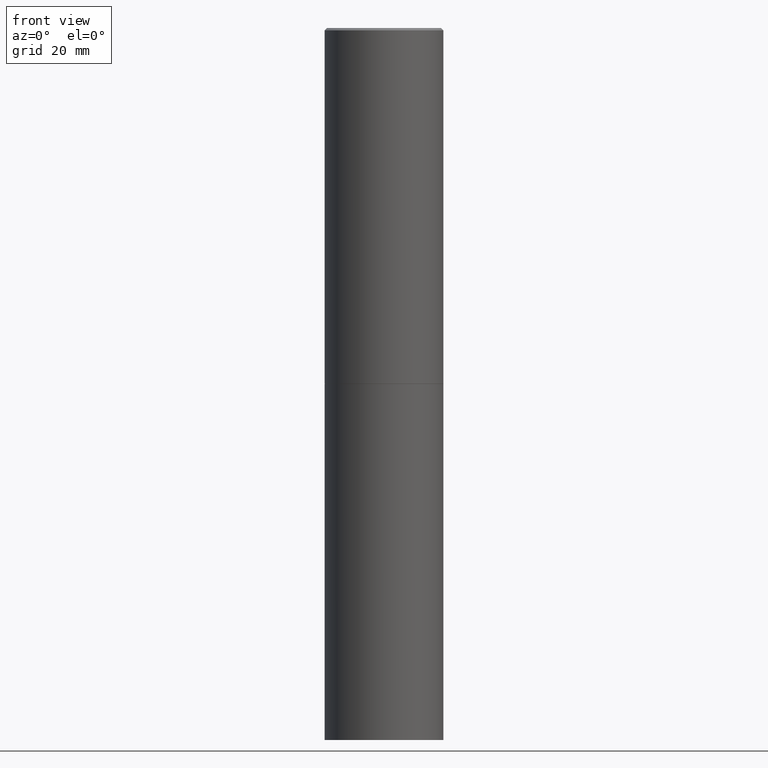
[diagram: clean part render]
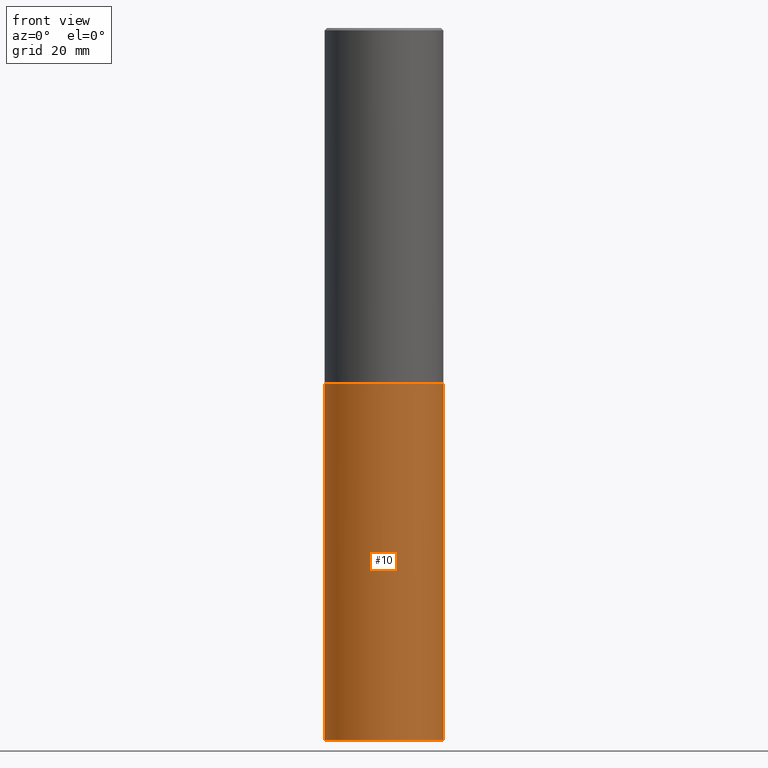
[diagram: same view with one face highlighted and labeled with its STEP entity id]
A machine part, front view. The second image highlights one B-rep face of the part: STEP entity #10.
In plain terms, the highlighted cylindrical surface (partial cylindrical patch) has radius 12.7 mm, axis along (-0, 0, 1).
Its self-contained STEP definition (entity closure, byte-faithful):
#7 = CARTESIAN_POINT ( 'NONE',  ( 7.336406418555409790E-29, -1.047444401652943635E-14, -3.000000000000000444 ) ) ;
#10 = ADVANCED_FACE ( 'NONE', ( #124 ), #153, .T. ) ;
#12 = DIRECTION ( 'NONE',  ( -2.445468806185136877E-29, 3.491481338843145188E-15, 1.000000000000000000 ) ) ;
#15 = AXIS2_PLACEMENT_3D ( 'NONE', #7, #238, #36 ) ;
#29 = CARTESIAN_POINT ( 'NONE',  ( -0.5000000000000000000, -1.215895234599365439E-14, -6.000000000000000888 ) ) ;
#30 = DIRECTION ( 'NONE',  ( -2.445468806185136597E-29, 3.491481338843145583E-15, 1.000000000000000000 ) ) ;
#31 = DIRECTION ( 'NONE',  ( 1.000000000000000000, -6.982962677686262766E-15, 0.000000000000000000 ) ) ;
#36 = DIRECTION ( 'NONE',  ( 1.000000000000000000, -6.982962677686266711E-15, 0.000000000000000000 ) ) ;
#39 = EDGE_CURVE ( 'NONE', #52, #143, #84, .T. ) ;
#49 = VECTOR ( 'NONE', #177, 39.37007874015748143 ) ;
#52 = VERTEX_POINT ( 'NONE', #29 ) ;
#67 = CARTESIAN_POINT ( 'NONE',  ( 0.5000000000000000000, -3.491481338843133355E-15, 2.438088387897967896E-29 ) ) ;
#73 = EDGE_CURVE ( 'NONE', #52, #199, #241, .T. ) ;
#82 = AXIS2_PLACEMENT_3D ( 'NONE', #87, #30, #31 ) ;
#84 = LINE ( 'NONE', #180, #49 ) ;
#87 = CARTESIAN_POINT ( 'NONE',  ( 1.467281283711081958E-28, -2.094888803305887271E-14, -6.000000000000000888 ) ) ;
#98 = CARTESIAN_POINT ( 'NONE',  ( -0.5000000000000000000, -1.215895234599365439E-14, -3.000000000000000444 ) ) ;
#99 = VECTOR ( 'NONE', #12, 39.37007874015748143 ) ;
#124 = FACE_OUTER_BOUND ( 'NONE', #302, .T. ) ;
#128 = EDGE_CURVE ( 'NONE', #199, #325, #320, .T. ) ;
#141 = ORIENTED_EDGE ( 'NONE', *, *, #285, .F. ) ;
#143 = VERTEX_POINT ( 'NONE', #98 ) ;
#145 = DIRECTION ( 'NONE',  ( -2.445468806185136597E-29, 3.491481338843145583E-15, 1.000000000000000000 ) ) ;
#153 = CYLINDRICAL_SURFACE ( 'NONE', #349, 0.5000000000000000000 ) ;
#157 = CARTESIAN_POINT ( 'NONE',  ( 0.5000000000000000000, -2.444036937190200606E-14, -6.000000000000000888 ) ) ;
#165 = CIRCLE ( 'NONE', #15, 0.5000000000000000000 ) ;
#177 = DIRECTION ( 'NONE',  ( -2.445468806185136877E-29, 3.491481338843145188E-15, 1.000000000000000000 ) ) ;
#180 = CARTESIAN_POINT ( 'NONE',  ( -0.5000000000000000000, 3.552713678800500929E-15, -2.459467545127452891E-29 ) ) ;
#199 = VERTEX_POINT ( 'NONE', #157 ) ;
#205 = CARTESIAN_POINT ( 'NONE',  ( 0.000000000000000000, 0.000000000000000000, 0.000000000000000000 ) ) ;
#222 = ORIENTED_EDGE ( 'NONE', *, *, #128, .T. ) ;
#238 = DIRECTION ( 'NONE',  ( -2.445468806185136597E-29, 3.491481338843145583E-15, 1.000000000000000000 ) ) ;
#241 = CIRCLE ( 'NONE', #82, 0.5000000000000000000 ) ;
#250 = ORIENTED_EDGE ( 'NONE', *, *, #73, .T. ) ;
#285 = EDGE_CURVE ( 'NONE', #143, #325, #165, .T. ) ;
#296 = CARTESIAN_POINT ( 'NONE',  ( 0.5000000000000000000, -1.396592535537257129E-14, -3.000000000000000444 ) ) ;
#302 = EDGE_LOOP ( 'NONE', ( #357, #250, #222, #141 ) ) ;
#307 = DIRECTION ( 'NONE',  ( 1.000000000000000000, -6.982962677686266711E-15, 4.876176775795935793E-29 ) ) ;
#320 = LINE ( 'NONE', #67, #99 ) ;
#325 = VERTEX_POINT ( 'NONE', #296 ) ;
#349 = AXIS2_PLACEMENT_3D ( 'NONE', #205, #145, #307 ) ;
#357 = ORIENTED_EDGE ( 'NONE', *, *, #39, .F. ) ;